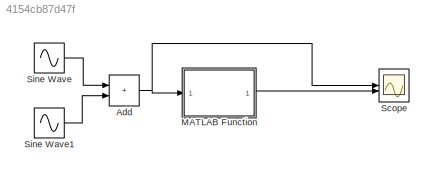
MODEL slx_4154cb87d47f
KIND model
CONFIG AbsTol = auto
CONFIG EnableMultiTasking = off
CONFIG FixedStep = auto
CONFIG MaxStep = 0.00001
CONFIG MinStep = auto
CONFIG RelTol = 1e-3
CONFIG SampleTimeConstraint = Unconstrained
CONFIG SolverName = VariableStepAuto
CONFIG StartTime = 0.0
CONFIG StopTime = 0.5
BLOCK [Sum] Add
  IconShape = rectangular
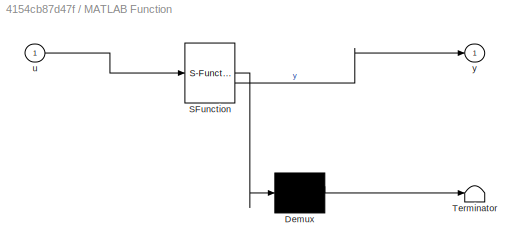
BLOCK [SubSystem] MATLAB Function
  ErrorFcn = Stateflow.Translate.translate
  LibrarySourceBlock = simulink/User-Defined\nFunctions/MATLAB Function
  PermitHierarchicalResolution = ExplicitOnly
  SFBlockType = MATLAB Function
  TreatAsAtomicUnit = on
BLOCK [Demux] MATLAB Function/ Demux 
  Outputs = 1
BLOCK [S-Function] MATLAB Function/ SFunction 
  EnableBusSupport = on
  FunctionName = sf_sfun
  PortCounts = [1 2]
  SFcnIsStateOwnerBlock = off
  SFunctionDeploymentMode = off
  Tag = Stateflow S-Function 2
BLOCK [Terminator] MATLAB Function/ Terminator 
BLOCK [Inport] MATLAB Function/u
BLOCK [Outport] MATLAB Function/y
BLOCK [Scope] Scope
  Floating = off
  NumInputPorts = 2
  ScopeSpecificationString = Simulink.scopes.TimeScopeBlockCfg('CurrentConfiguration', extmgr.ConfigurationSet(extmgr.Configuration('Core','General UI',true),extmgr.Configuration('Core','Source UI',true),extmgr.Configuration('Sources','WiredSimulink',true),extmgr.Configuration('Visuals','Time Domain',true,'SerializedDisplays',{struct('MinYLimReal','-2.54454','MaxYLimReal','2.07831','YLabelReal','','MinYLimMag','0.00000','MaxY...<+1416ch>
BLOCK [Sin] Sine Wave
  Amplitude = 2
  Frequency = 100*2*pi
  SampleTime = 0
BLOCK [Sin] Sine Wave1
  Amplitude = 0.3
  Frequency = 10000*2*pi
  SampleTime = 0
NET Add:1 -> MATLAB Function:1, Scope:1
LINE MATLAB Function:1 -> Scope:2
LINE Sine Wave1:1 -> Add:2
LINE Sine Wave:1 -> Add:1
note: NET lines group one-source signal fan-out (src -> all destinations, sorted); 1:1 wires keep LINE
CHART MATLAB Function states=1 transitions=1
  STATE_LABEL 'eML_blk_kernel()'
  STATE_LABEL 'SCRIPT:\nfunction y = fcn(u)\n%#codegen\npersistent yk yk_1 Tsc wc\nif isempty(yk)\n    yk = 0;\n    yk_1 = 0;\n    Tsc =0.0001;\n    wc =100;\nend\n sum = (1+wc*Tsc);\n    alpha = 1 / sum;\n    beta = wc*Tsc / sum;\n    yk = alpha*yk_1 + beta*u;\n    yk_1 = yk;\ny = yk;'
CHART  states=0 transitions=0
